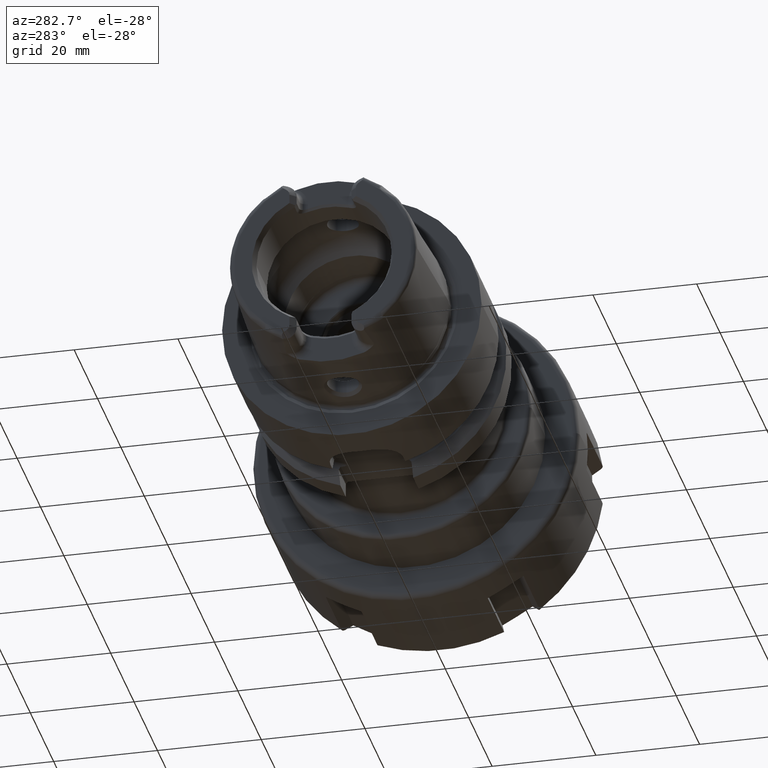
[diagram: clean part render]
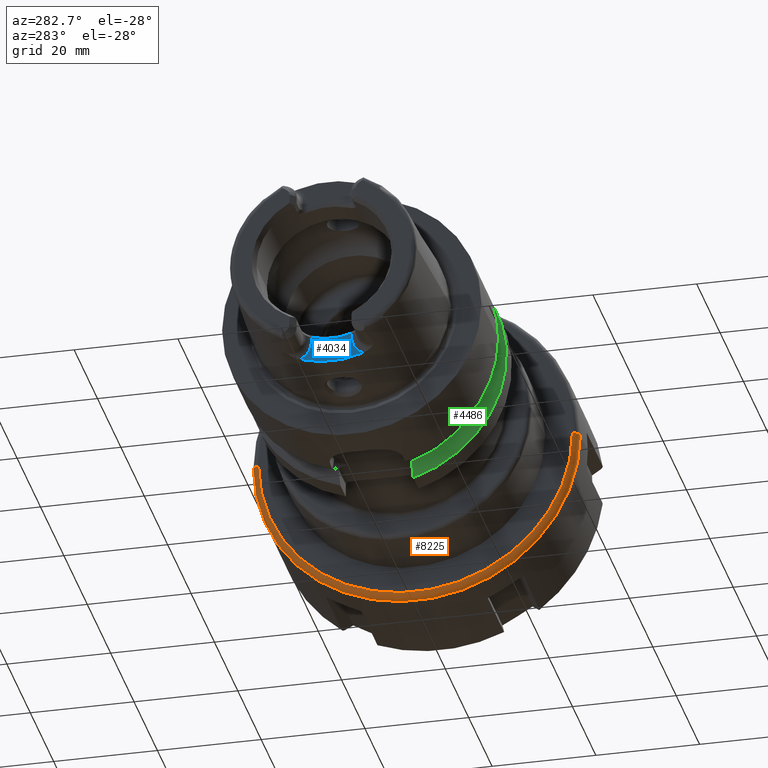
[diagram: same view with three faces highlighted in distinct colors, each labeled with its STEP entity id]
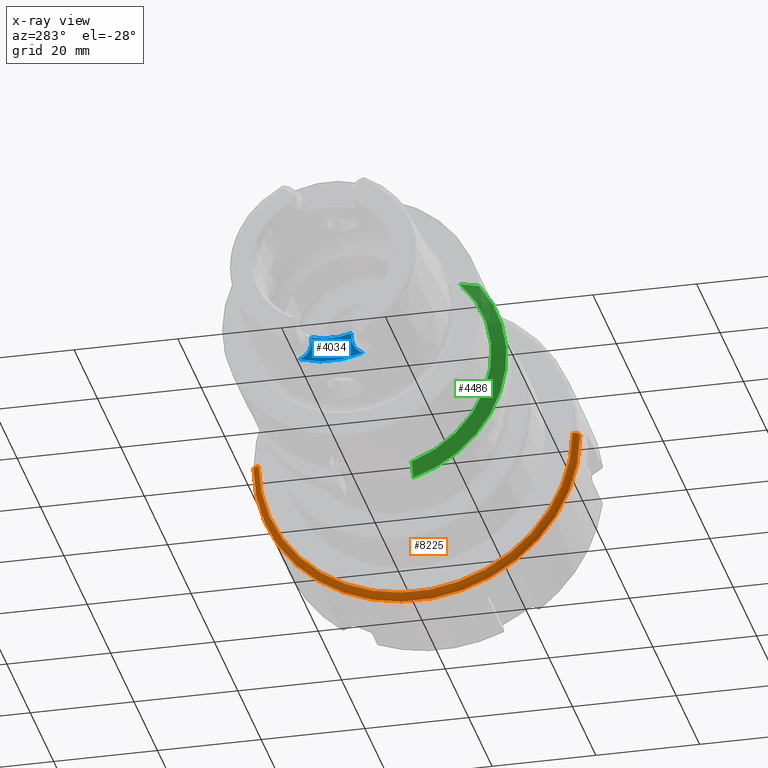
[diagram: x-ray of the same camera — body ghosted, the three highlighted faces saturated]
A machine part, auxiliary view with three faces highlighted in distinct colors.
The next image is the same camera in x-ray (body ghosted, the three faces saturated) — at least one of them is partly hidden behind the body in this view.
Their STEP definitions:

[orange] entity #8225 — the highlighted toroidal blend (fillet) surface has major radius 30.25 mm and minor (blend) radius 1.25 mm.
#7065=CARTESIAN_POINT('',(1.25E0,0.E0,0.E0));
#7066=DIRECTION('',(-1.E0,0.E0,0.E0));
#7067=DIRECTION('',(0.E0,1.E0,0.E0));
#7068=AXIS2_PLACEMENT_3D('',#7065,#7066,#7067);
#7462=CARTESIAN_POINT('',(1.25E0,-3.024999999997E1,-3.128053371881E-14));
#7463=DIRECTION('',(0.E0,0.E0,1.E0));
#7464=DIRECTION('',(-1.E0,0.E0,0.E0));
#7465=AXIS2_PLACEMENT_3D('',#7462,#7463,#7464);
#7467=CARTESIAN_POINT('',(0.E0,0.E0,0.E0));
#7468=DIRECTION('',(-1.E0,0.E0,0.E0));
#7469=DIRECTION('',(0.E0,1.E0,0.E0));
#7470=AXIS2_PLACEMENT_3D('',#7467,#7468,#7469);
#7477=CARTESIAN_POINT('',(1.25E0,3.024999999997E1,0.E0));
#7478=DIRECTION('',(0.E0,0.E0,-1.E0));
#7479=DIRECTION('',(-1.E0,0.E0,0.E0));
#7480=AXIS2_PLACEMENT_3D('',#7477,#7478,#7479);
#7630=CARTESIAN_POINT('',(0.E0,3.024999999997E1,1.713825516537E-14));
#7631=CARTESIAN_POINT('',(1.719369494877E-14,-3.024999999997E1,
-3.427651033073E-14));
#7632=VERTEX_POINT('',#7630);
#7633=VERTEX_POINT('',#7631);
#7634=CARTESIAN_POINT('',(1.25E0,3.149999999997E1,1.784644752757E-14));
#7635=CARTESIAN_POINT('',(1.25E0,-3.149999999997E1,-2.170408494488E-14));
#7636=VERTEX_POINT('',#7634);
#7637=VERTEX_POINT('',#7635);
#8214=CARTESIAN_POINT('',(1.25E0,0.E0,0.E0));
#8215=DIRECTION('',(1.E0,0.E0,0.E0));
#8216=DIRECTION('',(0.E0,9.999759566163E-1,6.934420614304E-3));
#8217=AXIS2_PLACEMENT_3D('',#8214,#8215,#8216);
#8218=TOROIDAL_SURFACE('',#8217,3.024999999997E1,1.25E0);
#8219=ORIENTED_EDGE('',*,*,#8208,.T.);
#8220=ORIENTED_EDGE('',*,*,#8198,.T.);
#8221=ORIENTED_EDGE('',*,*,#7871,.F.);
#8222=ORIENTED_EDGE('',*,*,#8195,.F.);
#8223=EDGE_LOOP('',(#8219,#8220,#8221,#8222));
#8224=FACE_OUTER_BOUND('',#8223,.F.);
#8225=ADVANCED_FACE('',(#8224),#8218,.T.);
#7069=CIRCLE('',#7068,3.149999999997E1);
#7466=CIRCLE('',#7465,1.25E0);
#7471=CIRCLE('',#7470,3.024999999997E1);
#7481=CIRCLE('',#7480,1.25E0);
#7871=EDGE_CURVE('',#7636,#7637,#7069,.T.);
#8195=EDGE_CURVE('',#7632,#7636,#7481,.T.);
#8198=EDGE_CURVE('',#7633,#7637,#7466,.T.);
#8208=EDGE_CURVE('',#7632,#7633,#7471,.T.);

[blue] entity #4034 — the highlighted planar face has unit normal (-1, 0, 0).
#545=CARTESIAN_POINT('',(-1.735E1,0.E0,0.E0));
#546=DIRECTION('',(1.E0,0.E0,0.E0));
#547=DIRECTION('',(0.E0,-3.329198137635E-1,-9.429551408225E-1));
#548=AXIS2_PLACEMENT_3D('',#545,#546,#547);
#639=CARTESIAN_POINT('',(-1.735E1,6.120985459700E0,-1.733695162471E1));
#676=CARTESIAN_POINT('',(-1.735E1,-3.869999999989E0,-1.293259992922E1));
#677=CARTESIAN_POINT('',(-1.735E1,-3.367341739332E0,-1.308906659587E1));
#678=CARTESIAN_POINT('',(-1.735E1,-2.351605461955E0,-1.333894307947E1));
#679=CARTESIAN_POINT('',(-1.735E1,-7.869237642382E-1,-1.352896153447E1));
#680=CARTESIAN_POINT('',(-1.735E1,7.869237642251E-1,-1.352896153447E1));
#681=CARTESIAN_POINT('',(-1.735E1,2.351605461930E0,-1.333894307948E1));
#682=CARTESIAN_POINT('',(-1.735E1,3.367341739323E0,-1.308906659588E1));
#683=CARTESIAN_POINT('',(-1.735E1,3.869999999991E0,-1.293259992922E1));
#685=DIRECTION('',(0.E0,-1.872308843683E-11,-1.E0));
#686=VECTOR('',#685,9.474000707143E-1);
#687=CARTESIAN_POINT('',(-1.735E1,-3.869999999989E0,-1.293259992922E1));
#688=LINE('',#687,#686);
#689=CARTESIAN_POINT('',(-1.735E1,-7.65E0,-1.388E1));
#690=DIRECTION('',(-1.E0,0.E0,0.E0));
#691=DIRECTION('',(0.E0,1.E0,0.E0));
#692=AXIS2_PLACEMENT_3D('',#689,#690,#691);
#694=CARTESIAN_POINT('',(-1.735E1,7.65E0,-1.388E1));
#695=DIRECTION('',(-1.E0,0.E0,0.E0));
#696=DIRECTION('',(0.E0,-4.045012011376E-1,-9.145374668532E-1));
#697=AXIS2_PLACEMENT_3D('',#694,#695,#696);
#699=DIRECTION('',(0.E0,-2.677331803516E-11,1.E0));
#700=VECTOR('',#699,9.474000706860E-1);
#701=CARTESIAN_POINT('',(-1.735E1,3.870000000016E0,-1.387999999991E1));
#702=LINE('',#701,#700);
#765=CARTESIAN_POINT('',(-1.735E1,-6.120985459700E0,-1.733695162471E1));
#2895=VERTEX_POINT('',#765);
#2896=VERTEX_POINT('',#639);
#2900=CARTESIAN_POINT('',(-1.735E1,-3.87E0,-1.388E1));
#2902=VERTEX_POINT('',#2900);
#2904=CARTESIAN_POINT('',(-1.735E1,3.87E0,-1.388E1));
#2906=VERTEX_POINT('',#2904);
#2932=VERTEX_POINT('',#676);
#2933=VERTEX_POINT('',#683);
#4019=CARTESIAN_POINT('',(-1.735E1,0.E0,0.E0));
#4020=DIRECTION('',(-1.E0,0.E0,0.E0));
#4021=DIRECTION('',(0.E0,0.E0,1.E0));
#4022=AXIS2_PLACEMENT_3D('',#4019,#4020,#4021);
#4023=PLANE('',#4022);
#4024=ORIENTED_EDGE('',*,*,#4010,.F.);
#4026=ORIENTED_EDGE('',*,*,#4025,.T.);
#4028=ORIENTED_EDGE('',*,*,#4027,.T.);
#4029=ORIENTED_EDGE('',*,*,#3868,.T.);
#4030=ORIENTED_EDGE('',*,*,#3926,.T.);
#4031=ORIENTED_EDGE('',*,*,#3938,.T.);
#4032=EDGE_LOOP('',(#4024,#4026,#4028,#4029,#4030,#4031));
#4033=FACE_OUTER_BOUND('',#4032,.F.);
#4034=ADVANCED_FACE('',(#4033),#4023,.T.);
#549=CIRCLE('',#548,1.8385765E1);
#684=B_SPLINE_CURVE_WITH_KNOTS('',3,(#676,#677,#678,#679,#680,#681,#682,#683),
.UNSPECIFIED.,.F.,.F.,(4,1,1,1,1,4),(0.E0,2.E-1,4.E-1,6.E-1,8.E-1,1.E0),
.UNSPECIFIED.);
#693=CIRCLE('',#692,3.78E0);
#698=CIRCLE('',#697,3.78E0);
#3868=EDGE_CURVE('',#2895,#2896,#549,.T.);
#3926=EDGE_CURVE('',#2896,#2906,#698,.T.);
#3938=EDGE_CURVE('',#2906,#2933,#702,.T.);
#4010=EDGE_CURVE('',#2932,#2933,#684,.T.);
#4025=EDGE_CURVE('',#2932,#2902,#688,.T.);
#4027=EDGE_CURVE('',#2902,#2895,#693,.T.);

[green] entity #4486 — the highlighted conical surface has half-angle 60 deg.
#1028=CARTESIAN_POINT('',(2.139193283149E1,0.E0,0.E0));
#1029=DIRECTION('',(-1.E0,0.E0,0.E0));
#1030=DIRECTION('',(0.E0,-2.807E-1,-9.597955563556E-1));
#1031=AXIS2_PLACEMENT_3D('',#1028,#1029,#1030);
#1153=CARTESIAN_POINT('',(1.99125E1,0.E0,0.E0));
#1154=DIRECTION('',(-1.E0,0.E0,0.E0));
#1155=DIRECTION('',(0.E0,-3.127570026704E-1,-9.498331733945E-1));
#1156=AXIS2_PLACEMENT_3D('',#1153,#1154,#1155);
#1777=CARTESIAN_POINT('',(1.99125E1,-7.0175E0,-2.131192663117E1));
#1778=CARTESIAN_POINT('',(2.006811666437E1,-7.0175E0,-2.159569853632E1));
#1779=CARTESIAN_POINT('',(2.038519487445E1,-7.0175E0,-2.217279119970E1));
#1780=CARTESIAN_POINT('',(2.087809730565E1,-7.0175E0,-2.306665585329E1));
#1781=CARTESIAN_POINT('',(2.121868469876E1,-7.0175E0,-2.368224465230E1));
#1782=CARTESIAN_POINT('',(2.139193283149E1,-7.0175E0,-2.399488890889E1));
#1850=CARTESIAN_POINT('',(1.99125E1,-1.636523825010E1,1.535E1));
#1851=CARTESIAN_POINT('',(2.005777044718E1,-1.671021589054E1,1.535E1));
#1852=CARTESIAN_POINT('',(2.036082860334E1,-1.741962945744E1,1.535E1));
#1853=CARTESIAN_POINT('',(2.085085341992E1,-1.853580810939E1,1.535E1));
#1854=CARTESIAN_POINT('',(2.120690576891E1,-1.932662776812E1,1.535E1));
#1855=CARTESIAN_POINT('',(2.139193283149E1,-1.973265060756E1,1.535E1));
#3049=CARTESIAN_POINT('',(1.99125E1,-7.0175E0,-2.131192663117E1));
#3051=VERTEX_POINT('',#3049);
#3052=VERTEX_POINT('',#1782);
#3097=CARTESIAN_POINT('',(1.99125E1,-1.636523825010E1,1.535E1));
#3098=VERTEX_POINT('',#3097);
#3099=VERTEX_POINT('',#1855);
#4472=CARTESIAN_POINT('',(2.065221641574E1,0.E0,0.E0));
#4473=DIRECTION('',(1.E0,0.E0,0.E0));
#4474=DIRECTION('',(0.E0,-1.E0,0.E0));
#4475=AXIS2_PLACEMENT_3D('',#4472,#4473,#4474);
#4476=CONICAL_SURFACE('',#4475,2.371877358474E1,6.E1);
#4477=ORIENTED_EDGE('',*,*,#4406,.F.);
#4479=ORIENTED_EDGE('',*,*,#4478,.F.);
#4481=ORIENTED_EDGE('',*,*,#4480,.T.);
#4483=ORIENTED_EDGE('',*,*,#4482,.T.);
#4484=EDGE_LOOP('',(#4477,#4479,#4481,#4483));
#4485=FACE_OUTER_BOUND('',#4484,.F.);
#4486=ADVANCED_FACE('',(#4485),#4476,.T.);
#1032=CIRCLE('',#1031,2.5E1);
#1157=CIRCLE('',#1156,2.243754716948E1);
#1783=B_SPLINE_CURVE_WITH_KNOTS('',3,(#1777,#1778,#1779,#1780,#1781,#1782),
.UNSPECIFIED.,.F.,.F.,(4,1,1,4),(0.E0,3.333333333333E-1,6.666666666667E-1,1.E0),
.UNSPECIFIED.);
#1856=B_SPLINE_CURVE_WITH_KNOTS('',3,(#1850,#1851,#1852,#1853,#1854,#1855),
.UNSPECIFIED.,.F.,.F.,(4,1,1,4),(0.E0,3.333333333333E-1,6.666666666667E-1,1.E0),
.UNSPECIFIED.);
#4406=EDGE_CURVE('',#3052,#3099,#1032,.T.);
#4478=EDGE_CURVE('',#3051,#3052,#1783,.T.);
#4480=EDGE_CURVE('',#3051,#3098,#1157,.T.);
#4482=EDGE_CURVE('',#3098,#3099,#1856,.T.);